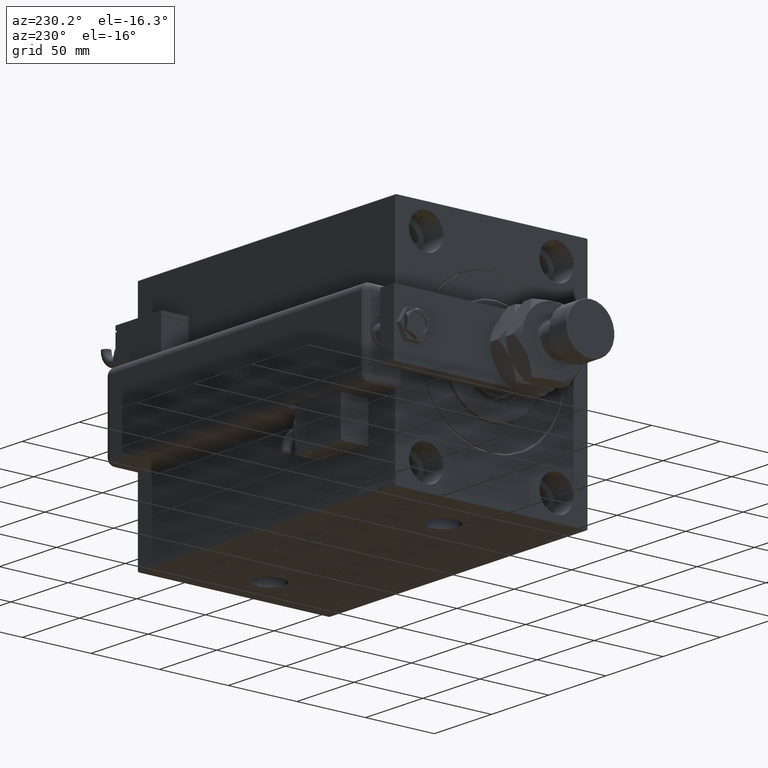
[diagram: clean part render]
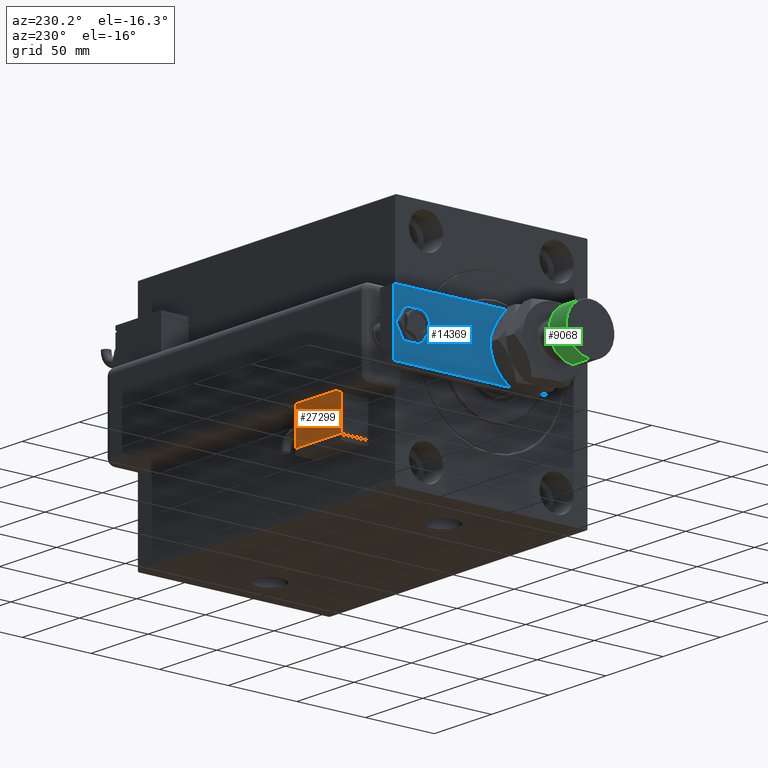
[diagram: same view with three faces highlighted in distinct colors, each labeled with its STEP entity id]
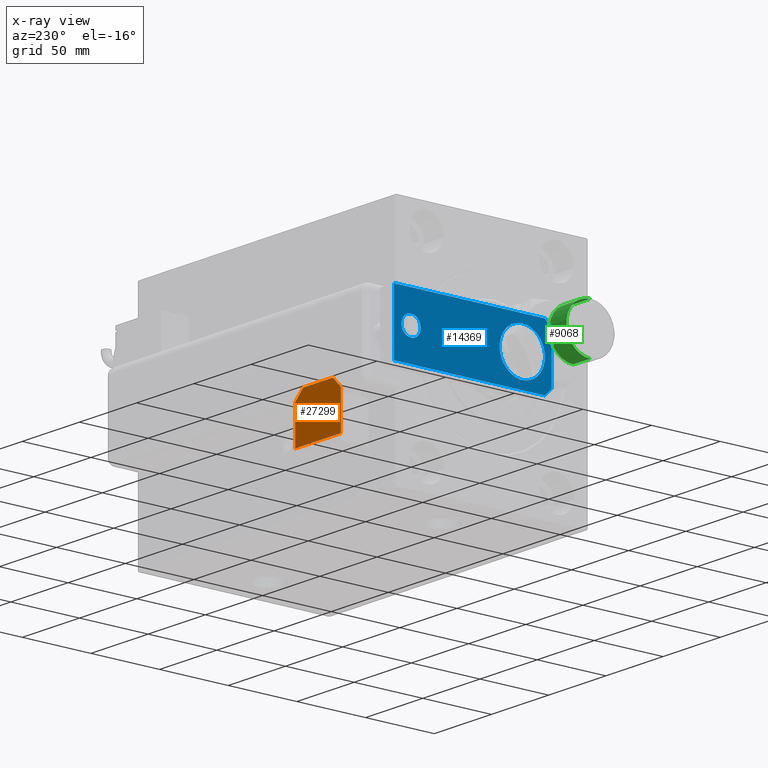
[diagram: x-ray of the same camera — body ghosted, the three highlighted faces saturated]
A machine part, auxiliary view with three faces highlighted in distinct colors.
The next image is the same camera in x-ray (body ghosted, the three faces saturated) — at least one of them is partly hidden behind the body in this view.
Their STEP definitions:

[orange] entity #27299 — the highlighted planar face has unit normal (-0, 1, -0).
#1058 = ORIENTED_EDGE ( 'NONE', *, *, #47121, .T. ) ;
#1923 = ORIENTED_EDGE ( 'NONE', *, *, #39260, .T. ) ;
#2366 = VECTOR ( 'NONE', #31206, 1000.000000000000114 ) ;
#2585 = CARTESIAN_POINT ( 'NONE',  ( 9.999999999999984013, 23.50000000000009592, 10.00000000000000000 ) ) ;
#4328 = EDGE_CURVE ( 'NONE', #48574, #48821, #47701, .T. ) ;
#4391 = FACE_OUTER_BOUND ( 'NONE', #19259, .T. ) ;
#4725 = DIRECTION ( 'NONE',  ( -1.000000000000000000, 0.000000000000000000, 0.000000000000000000 ) ) ;
#5113 = LINE ( 'NONE', #42969, #59420 ) ;
#5276 = ORIENTED_EDGE ( 'NONE', *, *, #29243, .T. ) ;
#7738 = DIRECTION ( 'NONE',  ( 1.284980352575412699E-16, 1.000000000000000000, 0.000000000000000000 ) ) ;
#8223 = LINE ( 'NONE', #17440, #39463 ) ;
#8721 = AXIS2_PLACEMENT_3D ( 'NONE', #39011, #9780, #62560 ) ;
#9780 = DIRECTION ( 'NONE',  ( 0.000000000000000000, 0.000000000000000000, 1.000000000000000000 ) ) ;
#12727 = ORIENTED_EDGE ( 'NONE', *, *, #4328, .T. ) ;
#14602 = VERTEX_POINT ( 'NONE', #39842 ) ;
#17440 = CARTESIAN_POINT ( 'NONE',  ( -19.99999999999993960, 13.49999999999986500, 10.00000000000000000 ) ) ;
#17967 = EDGE_CURVE ( 'NONE', #56437, #14602, #39033, .T. ) ;
#19259 = EDGE_LOOP ( 'NONE', ( #48627, #44165, #1923, #12727, #26175, #5276, #1058 ) ) ;
#19409 = DIRECTION ( 'NONE',  ( -1.284980352575421081E-16, -1.000000000000000000, -0.000000000000000000 ) ) ;
#22860 = CARTESIAN_POINT ( 'NONE',  ( -19.99999999999994316, -13.49999999999996092, 10.00000000000000000 ) ) ;
#26175 = ORIENTED_EDGE ( 'NONE', *, *, #51992, .T. ) ;
#26430 = LINE ( 'NONE', #2585, #2366 ) ;
#27299 = ADVANCED_FACE ( 'NONE', ( #4391 ), #33643, .T. ) ;
#28600 = DIRECTION ( 'NONE',  ( -1.284980352575421081E-16, -1.000000000000000000, -0.000000000000000000 ) ) ;
#29243 = EDGE_CURVE ( 'NONE', #40271, #50723, #34089, .T. ) ;
#31206 = DIRECTION ( 'NONE',  ( -0.7071067811865479058, 0.7071067811865470176, -0.000000000000000000 ) ) ;
#33643 = PLANE ( 'NONE',  #8721 ) ;
#34089 = LINE ( 'NONE', #57332, #57528 ) ;
#39011 = CARTESIAN_POINT ( 'NONE',  ( 0.000000000000000000, 0.000000000000000000, 10.00000000000000000 ) ) ;
#39033 = LINE ( 'NONE', #47363, #50066 ) ;
#39260 = EDGE_CURVE ( 'NONE', #14602, #48574, #8223, .T. ) ;
#39455 = CARTESIAN_POINT ( 'NONE',  ( -19.99999999999993960, 13.49999999999986500, 10.00000000000000000 ) ) ;
#39463 = VECTOR ( 'NONE', #56243, 1000.000000000000000 ) ;
#39842 = CARTESIAN_POINT ( 'NONE',  ( -12.99999999999994138, 20.50000000000009592, 10.00000000000000000 ) ) ;
#40271 = VERTEX_POINT ( 'NONE', #22860 ) ;
#42907 = CARTESIAN_POINT ( 'NONE',  ( -19.99999999999994316, -13.49999999999996092, 10.00000000000000000 ) ) ;
#42969 = CARTESIAN_POINT ( 'NONE',  ( -19.99999999999994316, -13.49999999999996092, 10.00000000000000000 ) ) ;
#43793 = EDGE_CURVE ( 'NONE', #52004, #56437, #26430, .T. ) ;
#44165 = ORIENTED_EDGE ( 'NONE', *, *, #17967, .T. ) ;
#47121 = EDGE_CURVE ( 'NONE', #50723, #52004, #55759, .T. ) ;
#47363 = CARTESIAN_POINT ( 'NONE',  ( -10.00000000000004086, 20.50000000000009592, 10.00000000000000000 ) ) ;
#47701 = LINE ( 'NONE', #42907, #52261 ) ;
#48574 = VERTEX_POINT ( 'NONE', #39455 ) ;
#48627 = ORIENTED_EDGE ( 'NONE', *, *, #43793, .T. ) ;
#48821 = VERTEX_POINT ( 'NONE', #58797 ) ;
#48983 = CARTESIAN_POINT ( 'NONE',  ( 20.00000000000005684, 13.50000000000003730, 10.00000000000000000 ) ) ;
#50066 = VECTOR ( 'NONE', #4725, 1000.000000000000000 ) ;
#50723 = VERTEX_POINT ( 'NONE', #52579 ) ;
#51316 = CARTESIAN_POINT ( 'NONE',  ( 20.00000000000005329, -13.49999999999996092, 10.00000000000000000 ) ) ;
#51992 = EDGE_CURVE ( 'NONE', #48821, #40271, #5113, .T. ) ;
#52004 = VERTEX_POINT ( 'NONE', #48983 ) ;
#52261 = VECTOR ( 'NONE', #28600, 1000.000000000000000 ) ;
#52579 = CARTESIAN_POINT ( 'NONE',  ( 20.00000000000005329, -13.49999999999996092, 10.00000000000000000 ) ) ;
#53496 = DIRECTION ( 'NONE',  ( 1.000000000000000000, 0.000000000000000000, 0.000000000000000000 ) ) ;
#55151 = VECTOR ( 'NONE', #7738, 1000.000000000000000 ) ;
#55759 = LINE ( 'NONE', #51316, #55151 ) ;
#56243 = DIRECTION ( 'NONE',  ( -0.7071067811865356934, -0.7071067811865593411, -0.000000000000000000 ) ) ;
#56437 = VERTEX_POINT ( 'NONE', #58302 ) ;
#57332 = CARTESIAN_POINT ( 'NONE',  ( -19.99999999999994316, -13.49999999999996092, 10.00000000000000000 ) ) ;
#57528 = VECTOR ( 'NONE', #53496, 1000.000000000000000 ) ;
#58302 = CARTESIAN_POINT ( 'NONE',  ( 12.99999999999999112, 20.50000000000009592, 10.00000000000000000 ) ) ;
#58797 = CARTESIAN_POINT ( 'NONE',  ( -19.99999999999993960, 2.569960705150834076E-15, 10.00000000000000000 ) ) ;
#59420 = VECTOR ( 'NONE', #19409, 1000.000000000000000 ) ;
#62560 = DIRECTION ( 'NONE',  ( 1.000000000000000000, 0.000000000000000000, -0.000000000000000000 ) ) ;

[blue] entity #14369 — the highlighted planar face has unit normal (1, 0, -0).
#409 = CARTESIAN_POINT ( 'NONE',  ( -22.50000000000001066, 5.000000000000031974, 0.000000000000000000 ) ) ;
#843 = CARTESIAN_POINT ( 'NONE',  ( 0.000000000000000000, 21.50000000000000355, 0.000000000000000000 ) ) ;
#1023 = LINE ( 'NONE', #21034, #23726 ) ;
#1062 = DIRECTION ( 'NONE',  ( -6.033820786006285224E-17, -1.000000000000000000, 0.000000000000000000 ) ) ;
#2016 = DIRECTION ( 'NONE',  ( 1.000000000000000000, 0.000000000000000000, 0.000000000000000000 ) ) ;
#2136 = EDGE_CURVE ( 'NONE', #53704, #34315, #3943, .T. ) ;
#2181 = CARTESIAN_POINT ( 'NONE',  ( -22.50000000000001066, 0.000000000000000000, 0.000000000000000000 ) ) ;
#2224 = AXIS2_PLACEMENT_3D ( 'NONE', #60430, #11474, #51239 ) ;
#2571 = ORIENTED_EDGE ( 'NONE', *, *, #43668, .F. ) ;
#2694 = VERTEX_POINT ( 'NONE', #21423 ) ;
#2712 = VECTOR ( 'NONE', #62626, 1000.000000000000114 ) ;
#3943 = LINE ( 'NONE', #23330, #9533 ) ;
#5161 = EDGE_LOOP ( 'NONE', ( #44319, #16301, #6069, #54857, #2571, #23314 ) ) ;
#5343 = DIRECTION ( 'NONE',  ( 1.000000000000000000, 0.000000000000000000, 0.000000000000000000 ) ) ;
#6069 = ORIENTED_EDGE ( 'NONE', *, *, #9124, .F. ) ;
#6132 = CARTESIAN_POINT ( 'NONE',  ( 1.963948872468190046E-17, 102.5000000000000142, 0.000000000000000000 ) ) ;
#7067 = ORIENTED_EDGE ( 'NONE', *, *, #49254, .T. ) ;
#7262 = LINE ( 'NONE', #2181, #17773 ) ;
#7537 = EDGE_LOOP ( 'NONE', ( #56614, #7067 ) ) ;
#7838 = EDGE_CURVE ( 'NONE', #21688, #12221, #56473, .T. ) ;
#8268 = CARTESIAN_POINT ( 'NONE',  ( 17.49999999999997868, 0.000000000000000000, 0.000000000000000000 ) ) ;
#8740 = EDGE_LOOP ( 'NONE', ( #57324, #45801 ) ) ;
#9124 = EDGE_CURVE ( 'NONE', #2694, #34315, #24605, .T. ) ;
#9533 = VECTOR ( 'NONE', #18557, 1000.000000000000114 ) ;
#9693 = EDGE_CURVE ( 'NONE', #20221, #36254, #19377, .T. ) ;
#10290 = CARTESIAN_POINT ( 'NONE',  ( -22.50000000000000355, 115.0000000000000000, 0.000000000000000000 ) ) ;
#10767 = CARTESIAN_POINT ( 'NONE',  ( 22.50000000000000000, 115.0000000000000000, 0.000000000000000000 ) ) ;
#10961 = CARTESIAN_POINT ( 'NONE',  ( 22.50000000000000000, 115.0000000000000000, 0.000000000000000000 ) ) ;
#11238 = CARTESIAN_POINT ( 'NONE',  ( 1.963948872468190046E-17, 102.5000000000000142, 0.000000000000000000 ) ) ;
#11474 = DIRECTION ( 'NONE',  ( -0.000000000000000000, 0.000000000000000000, 1.000000000000000000 ) ) ;
#12221 = VERTEX_POINT ( 'NONE', #34424 ) ;
#13951 = VECTOR ( 'NONE', #49753, 1000.000000000000000 ) ;
#14369 = ADVANCED_FACE ( 'NONE', ( #26733, #35959, #40722 ), #59812, .F. ) ;
#14529 = CIRCLE ( 'NONE', #24697, 7.000000000000000000 ) ;
#15411 = EDGE_CURVE ( 'NONE', #42033, #27415, #59146, .T. ) ;
#16301 = ORIENTED_EDGE ( 'NONE', *, *, #2136, .T. ) ;
#17773 = VECTOR ( 'NONE', #31767, 1000.000000000000000 ) ;
#18261 = EDGE_CURVE ( 'NONE', #27415, #42033, #14529, .T. ) ;
#18557 = DIRECTION ( 'NONE',  ( -0.7071067811865455743, 0.7071067811865493491, -0.000000000000000000 ) ) ;
#19377 = LINE ( 'NONE', #39078, #2712 ) ;
#19649 = DIRECTION ( 'NONE',  ( 0.000000000000000000, 0.000000000000000000, 1.000000000000000000 ) ) ;
#20221 = VERTEX_POINT ( 'NONE', #34482 ) ;
#20840 = DIRECTION ( 'NONE',  ( 1.000000000000000000, 0.000000000000000000, 0.000000000000000000 ) ) ;
#21034 = CARTESIAN_POINT ( 'NONE',  ( 22.50000000000001066, 0.000000000000000000, 0.000000000000000000 ) ) ;
#21423 = CARTESIAN_POINT ( 'NONE',  ( -22.50000000000000355, 115.0000000000000000, 0.000000000000000000 ) ) ;
#21688 = VERTEX_POINT ( 'NONE', #43582 ) ;
#22450 = CARTESIAN_POINT ( 'NONE',  ( 7.000000000000000000, 102.5000000000000142, 0.000000000000000000 ) ) ;
#23314 = ORIENTED_EDGE ( 'NONE', *, *, #9693, .T. ) ;
#23330 = CARTESIAN_POINT ( 'NONE',  ( -17.50000000000000355, 0.000000000000000000, 0.000000000000000000 ) ) ;
#23726 = VECTOR ( 'NONE', #24559, 1000.000000000000000 ) ;
#24559 = DIRECTION ( 'NONE',  ( -9.050731179009427836E-17, 1.000000000000000000, 0.000000000000000000 ) ) ;
#24605 = LINE ( 'NONE', #10290, #50459 ) ;
#24697 = AXIS2_PLACEMENT_3D ( 'NONE', #6132, #44905, #30907 ) ;
#26733 = FACE_OUTER_BOUND ( 'NONE', #5161, .T. ) ;
#26835 = CIRCLE ( 'NONE', #31942, 16.50000000000000000 ) ;
#27415 = VERTEX_POINT ( 'NONE', #22450 ) ;
#30636 = DIRECTION ( 'NONE',  ( 0.000000000000000000, 0.000000000000000000, 1.000000000000000000 ) ) ;
#30907 = DIRECTION ( 'NONE',  ( 1.000000000000000000, 0.000000000000000000, 0.000000000000000000 ) ) ;
#31286 = EDGE_CURVE ( 'NONE', #48859, #2694, #54531, .T. ) ;
#31767 = DIRECTION ( 'NONE',  ( 1.000000000000000000, 0.000000000000000000, 0.000000000000000000 ) ) ;
#31942 = AXIS2_PLACEMENT_3D ( 'NONE', #843, #39609, #20840 ) ;
#34315 = VERTEX_POINT ( 'NONE', #409 ) ;
#34424 = CARTESIAN_POINT ( 'NONE',  ( 16.50000000000000000, 21.50000000000000711, 0.000000000000000000 ) ) ;
#34482 = CARTESIAN_POINT ( 'NONE',  ( 22.50000000000001066, 5.000000000000003553, 0.000000000000000000 ) ) ;
#35450 = CARTESIAN_POINT ( 'NONE',  ( -7.000000000000000000, 102.5000000000000142, 0.000000000000000000 ) ) ;
#35538 = CARTESIAN_POINT ( 'NONE',  ( -17.50000000000000355, 0.000000000000000000, 0.000000000000000000 ) ) ;
#35959 = FACE_BOUND ( 'NONE', #8740, .T. ) ;
#36254 = VERTEX_POINT ( 'NONE', #8268 ) ;
#39078 = CARTESIAN_POINT ( 'NONE',  ( 22.50000000000001066, 5.000000000000004441, 0.000000000000000000 ) ) ;
#39609 = DIRECTION ( 'NONE',  ( 0.000000000000000000, 0.000000000000000000, 1.000000000000000000 ) ) ;
#40722 = FACE_BOUND ( 'NONE', #7537, .T. ) ;
#42033 = VERTEX_POINT ( 'NONE', #35450 ) ;
#42314 = AXIS2_PLACEMENT_3D ( 'NONE', #49546, #19649, #5343 ) ;
#43582 = CARTESIAN_POINT ( 'NONE',  ( -16.50000000000000000, 21.50000000000000355, 0.000000000000000000 ) ) ;
#43668 = EDGE_CURVE ( 'NONE', #20221, #48859, #1023, .T. ) ;
#44319 = ORIENTED_EDGE ( 'NONE', *, *, #50830, .F. ) ;
#44905 = DIRECTION ( 'NONE',  ( 0.000000000000000000, 0.000000000000000000, 1.000000000000000000 ) ) ;
#45801 = ORIENTED_EDGE ( 'NONE', *, *, #18261, .T. ) ;
#48859 = VERTEX_POINT ( 'NONE', #10767 ) ;
#49254 = EDGE_CURVE ( 'NONE', #12221, #21688, #26835, .T. ) ;
#49546 = CARTESIAN_POINT ( 'NONE',  ( 0.000000000000000000, 21.50000000000000355, 0.000000000000000000 ) ) ;
#49753 = DIRECTION ( 'NONE',  ( -1.000000000000000000, 0.000000000000000000, 0.000000000000000000 ) ) ;
#50459 = VECTOR ( 'NONE', #1062, 1000.000000000000000 ) ;
#50830 = EDGE_CURVE ( 'NONE', #53704, #36254, #7262, .T. ) ;
#51239 = DIRECTION ( 'NONE',  ( 1.000000000000000000, 0.000000000000000000, 0.000000000000000000 ) ) ;
#53704 = VERTEX_POINT ( 'NONE', #35538 ) ;
#54531 = LINE ( 'NONE', #10961, #13951 ) ;
#54857 = ORIENTED_EDGE ( 'NONE', *, *, #31286, .F. ) ;
#56473 = CIRCLE ( 'NONE', #42314, 16.50000000000000000 ) ;
#56614 = ORIENTED_EDGE ( 'NONE', *, *, #7838, .T. ) ;
#57324 = ORIENTED_EDGE ( 'NONE', *, *, #15411, .T. ) ;
#59146 = CIRCLE ( 'NONE', #62186, 7.000000000000000000 ) ;
#59812 = PLANE ( 'NONE',  #2224 ) ;
#60430 = CARTESIAN_POINT ( 'NONE',  ( 0.000000000000000000, 0.000000000000000000, 0.000000000000000000 ) ) ;
#62186 = AXIS2_PLACEMENT_3D ( 'NONE', #11238, #30636, #2016 ) ;
#62626 = DIRECTION ( 'NONE',  ( -0.7071067811865493491, -0.7071067811865455743, -0.000000000000000000 ) ) ;

[green] entity #9068 — the highlighted cylindrical surface (edge-blend (fillet) strip) has radius 17.5 mm, axis along (1, -0, -0).
#333 = CARTESIAN_POINT ( 'NONE',  ( 17.50000000000000355, 2.143131898507868643E-15, 59.50000000000000000 ) ) ;
#436 = CARTESIAN_POINT ( 'NONE',  ( 0.000000000000000000, 0.000000000000000000, 44.50000000000000000 ) ) ;
#2486 = CIRCLE ( 'NONE', #22788, 17.50000000000000355 ) ;
#2640 = VECTOR ( 'NONE', #53619, 1000.000000000000000 ) ;
#3711 = ORIENTED_EDGE ( 'NONE', *, *, #53840, .F. ) ;
#4390 = EDGE_LOOP ( 'NONE', ( #31728, #55087, #28682, #3711 ) ) ;
#5036 = EDGE_CURVE ( 'NONE', #56210, #50135, #51300, .T. ) ;
#6845 = VERTEX_POINT ( 'NONE', #24119 ) ;
#8424 = DIRECTION ( 'NONE',  ( -0.000000000000000000, -0.000000000000000000, -1.000000000000000000 ) ) ;
#9068 = ADVANCED_FACE ( 'NONE', ( #13199 ), #17646, .T. ) ;
#9266 = CARTESIAN_POINT ( 'NONE',  ( 17.50000000000000355, 2.143131898507868643E-15, 60.00000000000000000 ) ) ;
#12561 = VERTEX_POINT ( 'NONE', #333 ) ;
#13199 = FACE_OUTER_BOUND ( 'NONE', #4390, .T. ) ;
#14427 = DIRECTION ( 'NONE',  ( -0.000000000000000000, -0.000000000000000000, 1.000000000000000000 ) ) ;
#17314 = CARTESIAN_POINT ( 'NONE',  ( 17.50000000000000355, 2.143131898507868643E-15, 44.50000000000000000 ) ) ;
#17646 = CYLINDRICAL_SURFACE ( 'NONE', #57567, 17.50000000000000355 ) ;
#18457 = EDGE_CURVE ( 'NONE', #12561, #56210, #58536, .T. ) ;
#22788 = AXIS2_PLACEMENT_3D ( 'NONE', #52501, #31841, #37242 ) ;
#24119 = CARTESIAN_POINT ( 'NONE',  ( -17.50000000000000355, 0.000000000000000000, 59.50000000000000000 ) ) ;
#24840 = EDGE_CURVE ( 'NONE', #6845, #12561, #2486, .T. ) ;
#25590 = LINE ( 'NONE', #34834, #2640 ) ;
#28682 = ORIENTED_EDGE ( 'NONE', *, *, #5036, .T. ) ;
#31728 = ORIENTED_EDGE ( 'NONE', *, *, #24840, .T. ) ;
#31841 = DIRECTION ( 'NONE',  ( 0.000000000000000000, 0.000000000000000000, -1.000000000000000000 ) ) ;
#34834 = CARTESIAN_POINT ( 'NONE',  ( -17.50000000000000355, 0.000000000000000000, 60.00000000000000000 ) ) ;
#37242 = DIRECTION ( 'NONE',  ( 1.000000000000000000, 0.000000000000000000, 0.000000000000000000 ) ) ;
#44537 = DIRECTION ( 'NONE',  ( -0.000000000000000000, -0.000000000000000000, -1.000000000000000000 ) ) ;
#44626 = DIRECTION ( 'NONE',  ( -1.000000000000000000, 0.000000000000000000, 0.000000000000000000 ) ) ;
#45191 = AXIS2_PLACEMENT_3D ( 'NONE', #436, #14427, #58625 ) ;
#50135 = VERTEX_POINT ( 'NONE', #61218 ) ;
#51300 = CIRCLE ( 'NONE', #45191, 17.50000000000000355 ) ;
#52002 = CARTESIAN_POINT ( 'NONE',  ( 0.000000000000000000, 0.000000000000000000, 60.00000000000000000 ) ) ;
#52501 = CARTESIAN_POINT ( 'NONE',  ( 0.000000000000000000, 0.000000000000000000, 59.50000000000000000 ) ) ;
#53619 = DIRECTION ( 'NONE',  ( -0.000000000000000000, -0.000000000000000000, -1.000000000000000000 ) ) ;
#53840 = EDGE_CURVE ( 'NONE', #6845, #50135, #25590, .T. ) ;
#55087 = ORIENTED_EDGE ( 'NONE', *, *, #18457, .T. ) ;
#55144 = VECTOR ( 'NONE', #44537, 1000.000000000000000 ) ;
#56210 = VERTEX_POINT ( 'NONE', #17314 ) ;
#57567 = AXIS2_PLACEMENT_3D ( 'NONE', #52002, #8424, #44626 ) ;
#58536 = LINE ( 'NONE', #9266, #55144 ) ;
#58625 = DIRECTION ( 'NONE',  ( 1.000000000000000000, 0.000000000000000000, 0.000000000000000000 ) ) ;
#61218 = CARTESIAN_POINT ( 'NONE',  ( -17.50000000000000355, 0.000000000000000000, 44.50000000000000000 ) ) ;